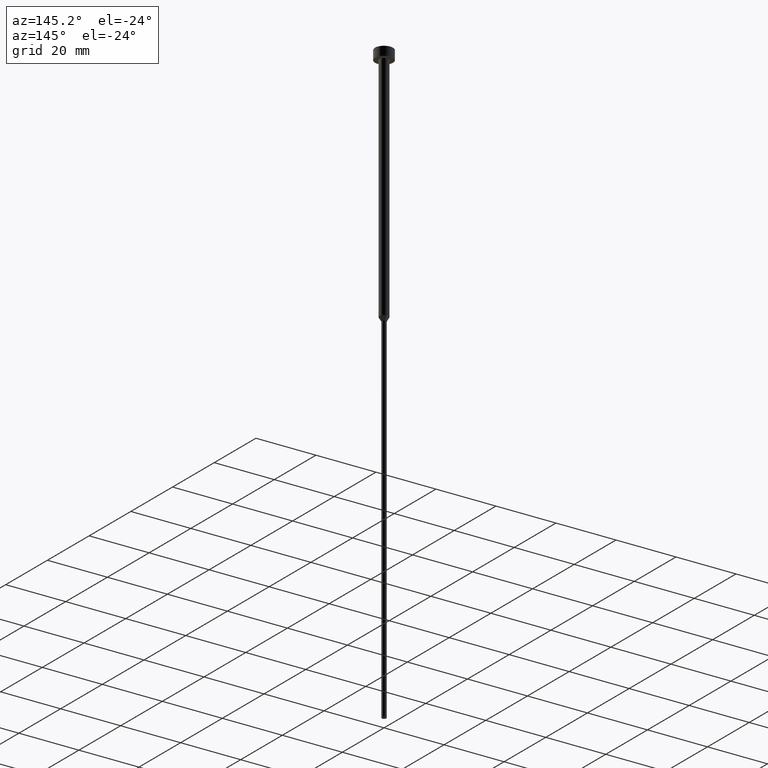
[diagram: clean part render]
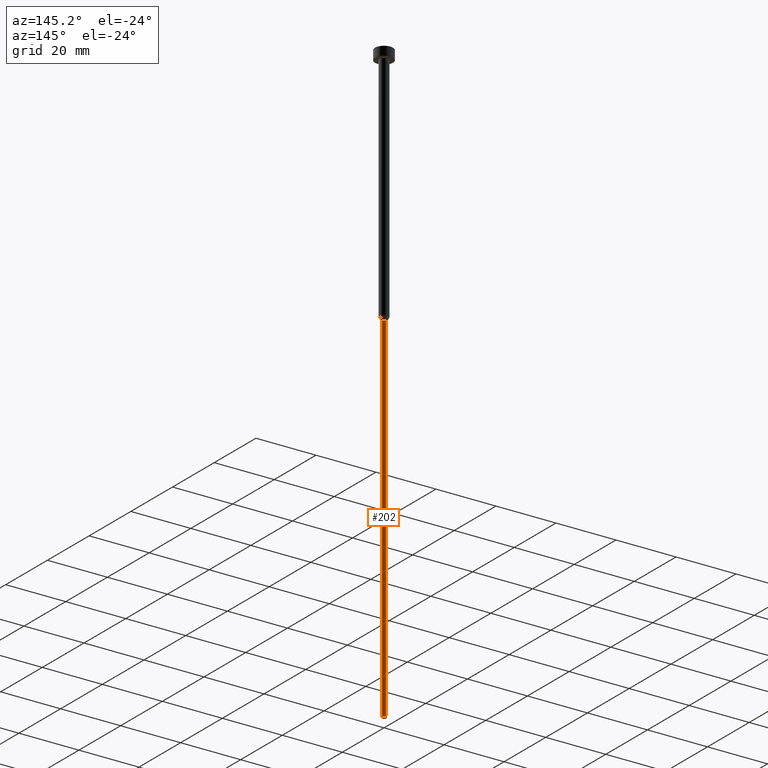
[diagram: same view with one face highlighted and labeled with its STEP entity id]
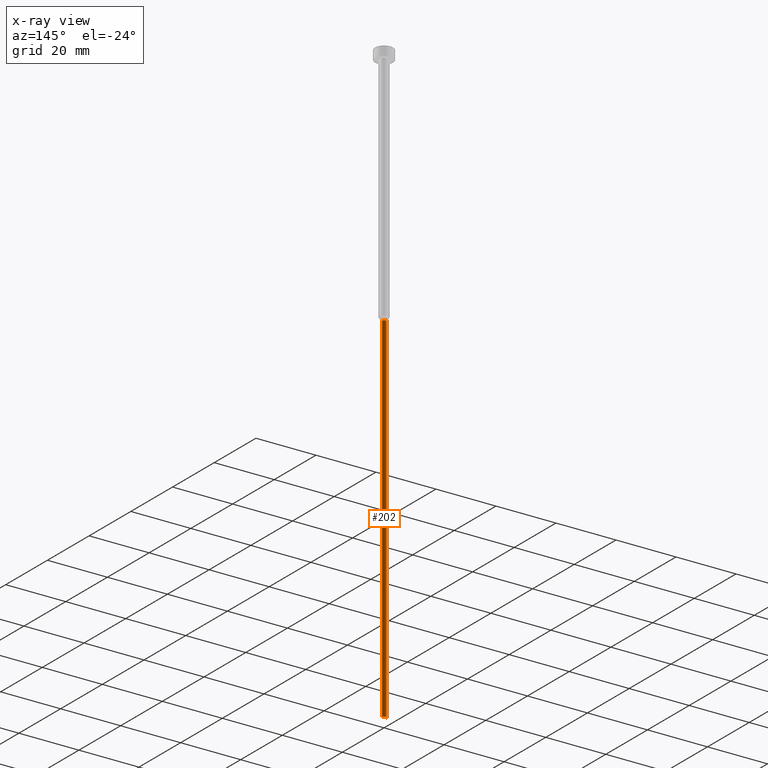
[diagram: x-ray of the same camera — body ghosted, the highlighted face saturated]
A machine part, auxiliary view. The second image highlights one B-rep face of the part: STEP entity #202.
The next image is the same camera in x-ray: the body ghosted, the highlighted face saturated — about 0% of this face is hidden behind the body in this view.
In plain terms, the highlighted cylindrical surface (edge-blend (fillet) strip) has radius 0.75 mm, axis along (-0, -0, 1).
Its self-contained STEP definition (entity closure, byte-faithful):
#2 = CARTESIAN_POINT ( 'NONE',  ( 0.7500000000000000000, 0.000000000000000000, 0.000000000000000000 ) ) ;
#3 = DIRECTION ( 'NONE',  ( -0.000000000000000000, -0.000000000000000000, 1.000000000000000000 ) ) ;
#15 = CARTESIAN_POINT ( 'NONE',  ( 0.7500000000000000000, 0.000000000000000000, -81.29903810567665801 ) ) ;
#27 = CARTESIAN_POINT ( 'NONE',  ( 0.000000000000000000, 0.000000000000000000, -200.0000000000000000 ) ) ;
#28 = EDGE_CURVE ( 'NONE', #65, #248, #331, .T. ) ;
#65 = VERTEX_POINT ( 'NONE', #15 ) ;
#79 = ORIENTED_EDGE ( 'NONE', *, *, #137, .T. ) ;
#90 = ORIENTED_EDGE ( 'NONE', *, *, #292, .T. ) ;
#92 = DIRECTION ( 'NONE',  ( -0.000000000000000000, -0.000000000000000000, 1.000000000000000000 ) ) ;
#94 = CYLINDRICAL_SURFACE ( 'NONE', #129, 0.7500000000000000000 ) ;
#99 = VERTEX_POINT ( 'NONE', #288 ) ;
#102 = ORIENTED_EDGE ( 'NONE', *, *, #28, .F. ) ;
#105 = DIRECTION ( 'NONE',  ( 1.000000000000000000, 0.000000000000000000, 0.000000000000000000 ) ) ;
#115 = CARTESIAN_POINT ( 'NONE',  ( -0.7500000000000000000, 9.184850993605149670E-17, -200.0000000000000000 ) ) ;
#119 = AXIS2_PLACEMENT_3D ( 'NONE', #278, #3, #355 ) ;
#121 = DIRECTION ( 'NONE',  ( -0.000000000000000000, -0.000000000000000000, 1.000000000000000000 ) ) ;
#124 = FACE_OUTER_BOUND ( 'NONE', #128, .T. ) ;
#125 = DIRECTION ( 'NONE',  ( -0.000000000000000000, -0.000000000000000000, 1.000000000000000000 ) ) ;
#128 = EDGE_LOOP ( 'NONE', ( #79, #90, #102, #257 ) ) ;
#129 = AXIS2_PLACEMENT_3D ( 'NONE', #250, #125, #105 ) ;
#137 = EDGE_CURVE ( 'NONE', #99, #253, #175, .T. ) ;
#148 = DIRECTION ( 'NONE',  ( 1.000000000000000000, 0.000000000000000000, 0.000000000000000000 ) ) ;
#158 = EDGE_CURVE ( 'NONE', #99, #65, #353, .T. ) ;
#169 = AXIS2_PLACEMENT_3D ( 'NONE', #27, #92, #148 ) ;
#170 = VECTOR ( 'NONE', #212, 1000.000000000000000 ) ;
#175 = CIRCLE ( 'NONE', #169, 0.7500000000000000000 ) ;
#183 = LINE ( 'NONE', #244, #170 ) ;
#186 = CARTESIAN_POINT ( 'NONE',  ( -0.7500000000000000000, 9.184850993605149670E-17, -81.29903810567665801 ) ) ;
#202 = ADVANCED_FACE ( 'NONE', ( #124 ), #94, .T. ) ;
#212 = DIRECTION ( 'NONE',  ( -0.000000000000000000, -0.000000000000000000, 1.000000000000000000 ) ) ;
#244 = CARTESIAN_POINT ( 'NONE',  ( -0.7500000000000000000, 9.184850993605149670E-17, 0.000000000000000000 ) ) ;
#247 = VECTOR ( 'NONE', #121, 1000.000000000000000 ) ;
#248 = VERTEX_POINT ( 'NONE', #186 ) ;
#250 = CARTESIAN_POINT ( 'NONE',  ( 0.000000000000000000, 0.000000000000000000, 0.000000000000000000 ) ) ;
#253 = VERTEX_POINT ( 'NONE', #115 ) ;
#257 = ORIENTED_EDGE ( 'NONE', *, *, #158, .F. ) ;
#278 = CARTESIAN_POINT ( 'NONE',  ( 0.000000000000000000, 0.000000000000000000, -81.29903810567665801 ) ) ;
#288 = CARTESIAN_POINT ( 'NONE',  ( 0.7500000000000000000, 0.000000000000000000, -200.0000000000000000 ) ) ;
#292 = EDGE_CURVE ( 'NONE', #253, #248, #183, .T. ) ;
#331 = CIRCLE ( 'NONE', #119, 0.7500000000000000000 ) ;
#353 = LINE ( 'NONE', #2, #247 ) ;
#355 = DIRECTION ( 'NONE',  ( 1.000000000000000000, 0.000000000000000000, 0.000000000000000000 ) ) ;